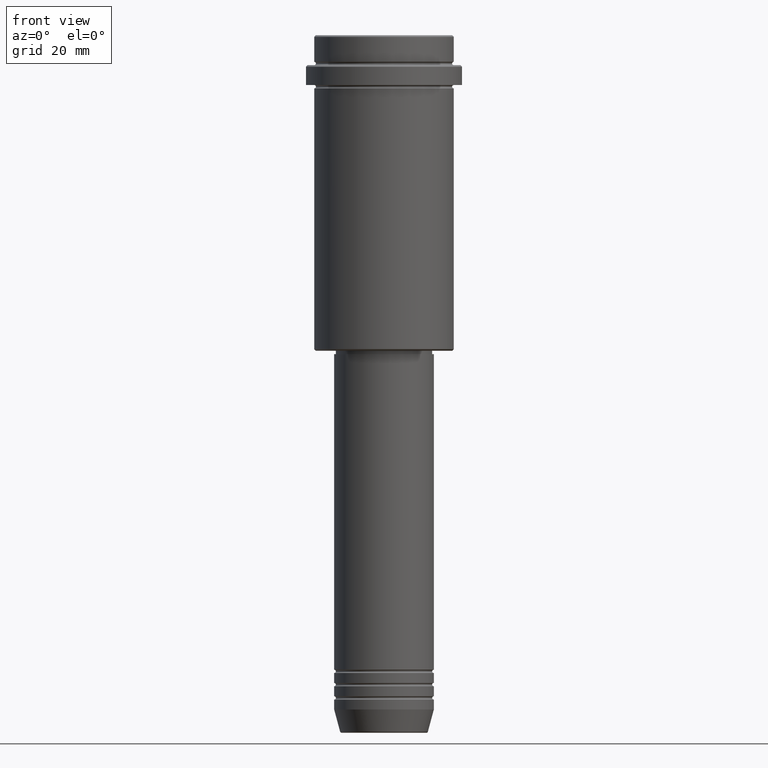
[diagram: clean part render]
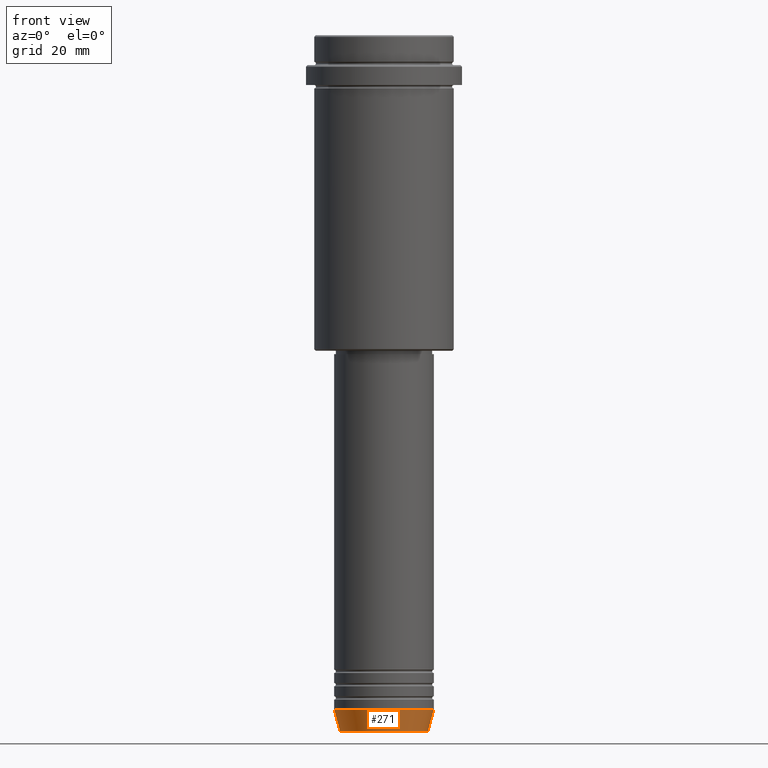
[diagram: same view with one face highlighted and labeled with its STEP entity id]
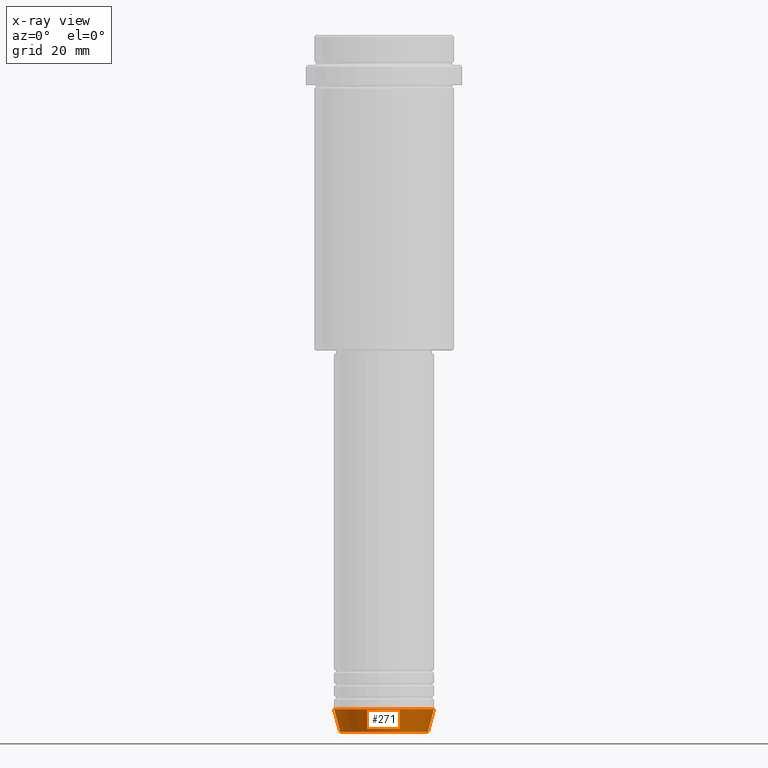
[diagram: x-ray of the same camera — body ghosted, the highlighted face saturated]
A machine part, front view. The second image highlights one B-rep face of the part: STEP entity #271.
The next image is the same camera in x-ray: the body ghosted, the highlighted face saturated — about 0% of this face is hidden behind the body in this view.
In plain terms, the highlighted conical surface has half-angle 15 deg.
Its self-contained STEP definition (entity closure, byte-faithful):
#23 = CARTESIAN_POINT ( 'NONE',  ( 13.22365507213719660, 0.000000000000000000, -209.6294095225512706 ) ) ;
#41 = AXIS2_PLACEMENT_3D ( 'NONE', #513, #1380, #729 ) ;
#152 = CONICAL_SURFACE ( 'NONE', #1414, 15.00000000000000000, 0.2617993877991497964 ) ;
#160 = VERTEX_POINT ( 'NONE', #788 ) ;
#271 = ADVANCED_FACE ( 'NONE', ( #609 ), #152, .T. ) ;
#276 = CIRCLE ( 'NONE', #1300, 13.22365507213719660 ) ;
#299 = VECTOR ( 'NONE', #714, 1000.000000000000114 ) ;
#318 = CARTESIAN_POINT ( 'NONE',  ( -15.00000000000000000, 1.836970198721029589E-15, -203.0000000000000000 ) ) ;
#400 = CARTESIAN_POINT ( 'NONE',  ( 0.000000000000000000, 0.000000000000000000, -209.6294095225512706 ) ) ;
#406 = DIRECTION ( 'NONE',  ( -0.000000000000000000, -0.000000000000000000, 1.000000000000000000 ) ) ;
#418 = ORIENTED_EDGE ( 'NONE', *, *, #1330, .T. ) ;
#466 = ORIENTED_EDGE ( 'NONE', *, *, #821, .T. ) ;
#475 = CARTESIAN_POINT ( 'NONE',  ( 0.000000000000000000, 0.000000000000000000, -203.0000000000000000 ) ) ;
#513 = CARTESIAN_POINT ( 'NONE',  ( 0.000000000000000000, 0.000000000000000000, -203.0000000000000000 ) ) ;
#516 = LINE ( 'NONE', #1261, #299 ) ;
#534 = CIRCLE ( 'NONE', #41, 15.00000000000000000 ) ;
#606 = VERTEX_POINT ( 'NONE', #23 ) ;
#609 = FACE_OUTER_BOUND ( 'NONE', #1240, .T. ) ;
#648 = DIRECTION ( 'NONE',  ( 0.2588190451025210725, 0.000000000000000000, 0.9659258262890680902 ) ) ;
#714 = DIRECTION ( 'NONE',  ( -0.2588190451025210725, 3.169619151431769255E-17, 0.9659258262890680902 ) ) ;
#729 = DIRECTION ( 'NONE',  ( 1.000000000000000000, 0.000000000000000000, 0.000000000000000000 ) ) ;
#764 = ORIENTED_EDGE ( 'NONE', *, *, #771, .F. ) ;
#771 = EDGE_CURVE ( 'NONE', #920, #1371, #534, .T. ) ;
#788 = CARTESIAN_POINT ( 'NONE',  ( -13.22365507213719837, 1.728200442216588780E-15, -209.6294095225512706 ) ) ;
#821 = EDGE_CURVE ( 'NONE', #606, #1371, #863, .T. ) ;
#858 = CARTESIAN_POINT ( 'NONE',  ( 15.00000000000000000, 0.000000000000000000, -203.0000000000000000 ) ) ;
#863 = LINE ( 'NONE', #1098, #1397 ) ;
#920 = VERTEX_POINT ( 'NONE', #318 ) ;
#1048 = DIRECTION ( 'NONE',  ( 1.000000000000000000, 0.000000000000000000, 0.000000000000000000 ) ) ;
#1098 = CARTESIAN_POINT ( 'NONE',  ( 15.00000000000000000, 0.000000000000000000, -203.0000000000000000 ) ) ;
#1216 = EDGE_CURVE ( 'NONE', #160, #920, #516, .T. ) ;
#1226 = DIRECTION ( 'NONE',  ( 1.000000000000000000, 0.000000000000000000, 0.000000000000000000 ) ) ;
#1240 = EDGE_LOOP ( 'NONE', ( #1246, #418, #466, #764 ) ) ;
#1246 = ORIENTED_EDGE ( 'NONE', *, *, #1216, .F. ) ;
#1261 = CARTESIAN_POINT ( 'NONE',  ( -15.00000000000000000, 1.836970198721029589E-15, -203.0000000000000000 ) ) ;
#1300 = AXIS2_PLACEMENT_3D ( 'NONE', #400, #406, #1048 ) ;
#1330 = EDGE_CURVE ( 'NONE', #160, #606, #276, .T. ) ;
#1343 = DIRECTION ( 'NONE',  ( -0.000000000000000000, -0.000000000000000000, 1.000000000000000000 ) ) ;
#1371 = VERTEX_POINT ( 'NONE', #858 ) ;
#1380 = DIRECTION ( 'NONE',  ( -0.000000000000000000, -0.000000000000000000, 1.000000000000000000 ) ) ;
#1397 = VECTOR ( 'NONE', #648, 1000.000000000000114 ) ;
#1414 = AXIS2_PLACEMENT_3D ( 'NONE', #475, #1343, #1226 ) ;